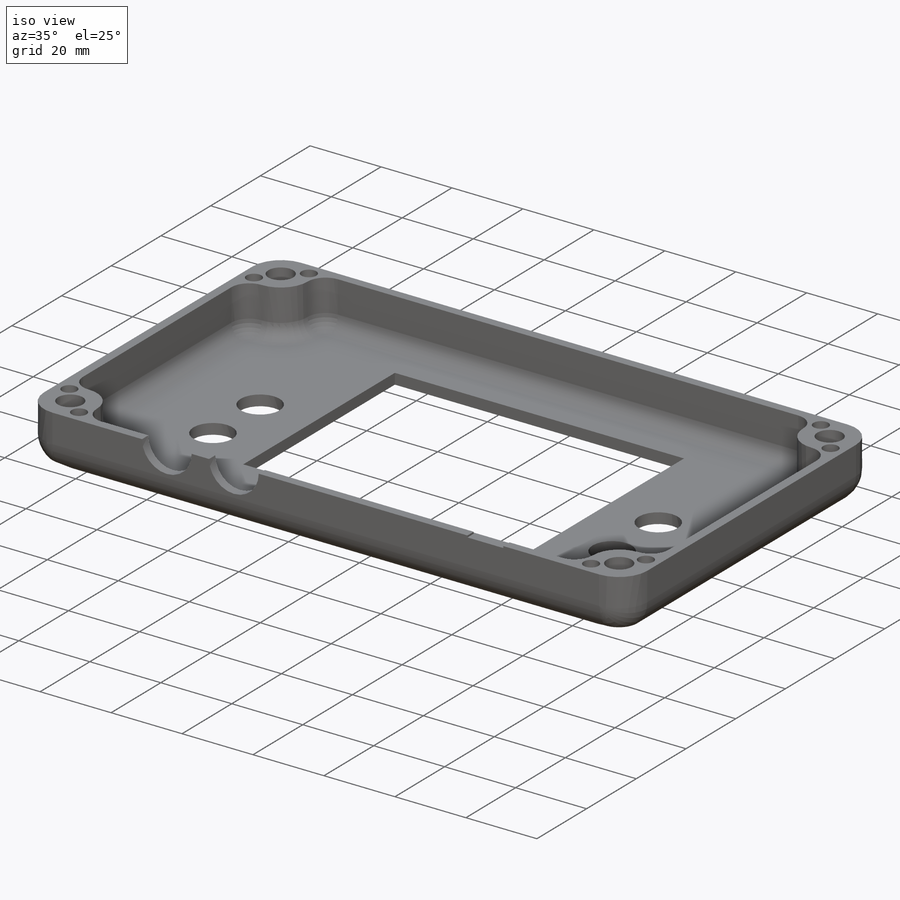
[diagram: iso view]
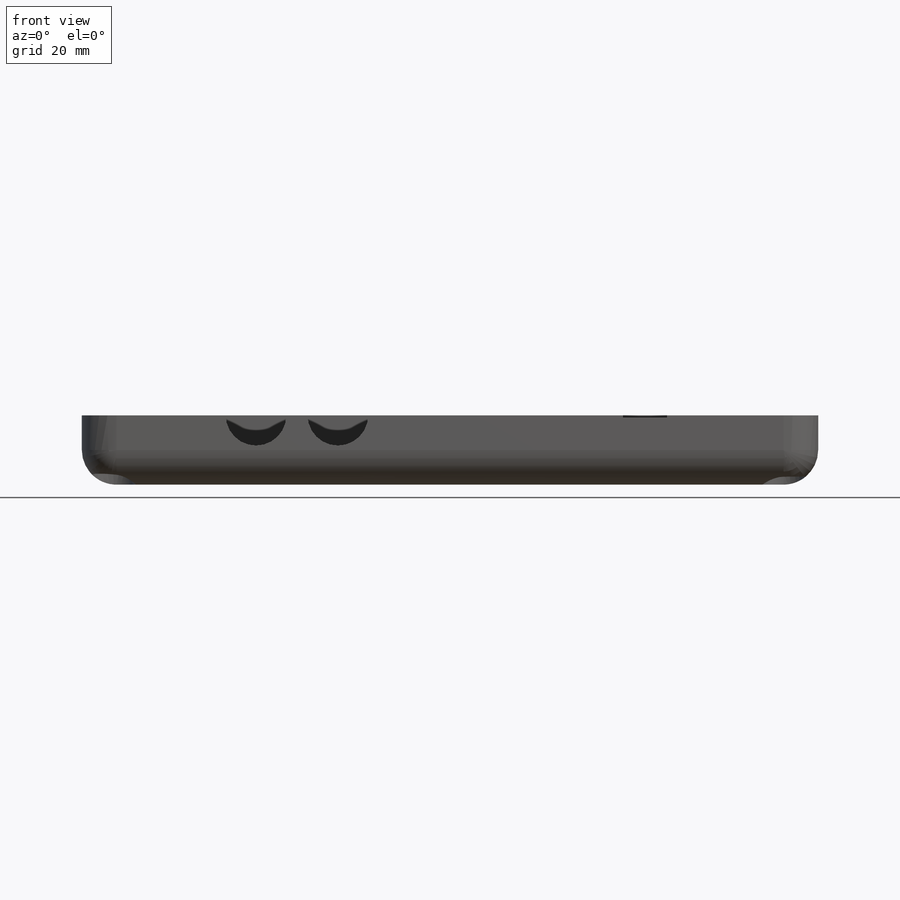
[diagram: front view]
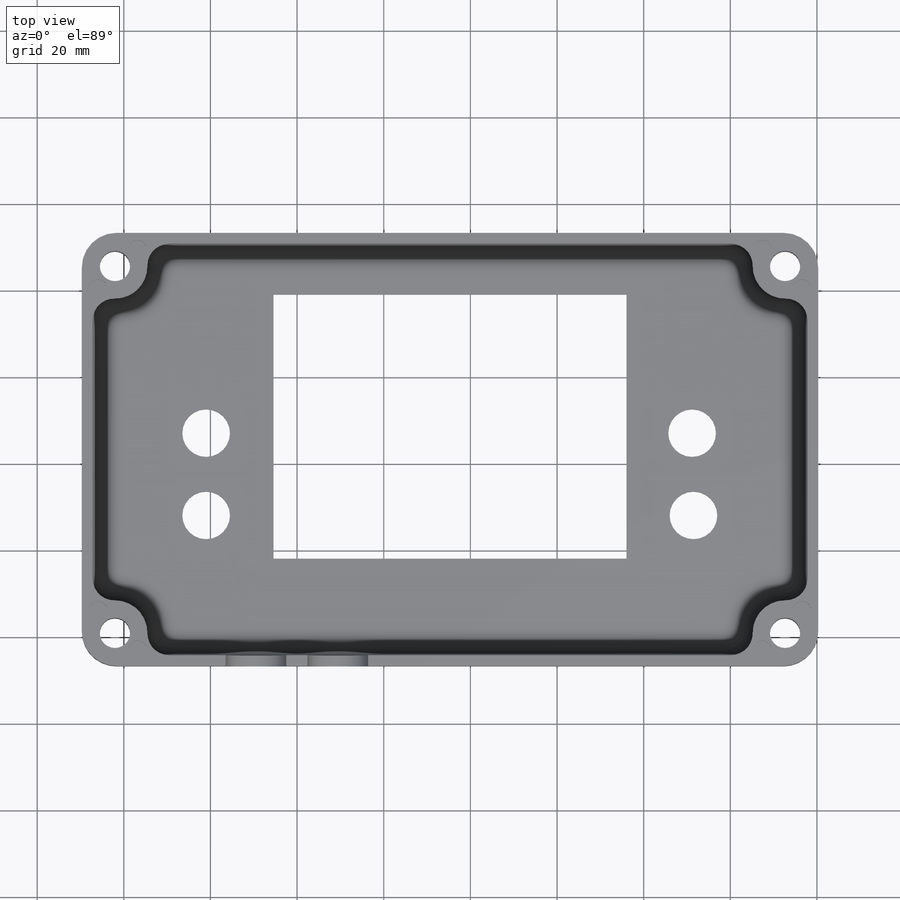
[diagram: top view]
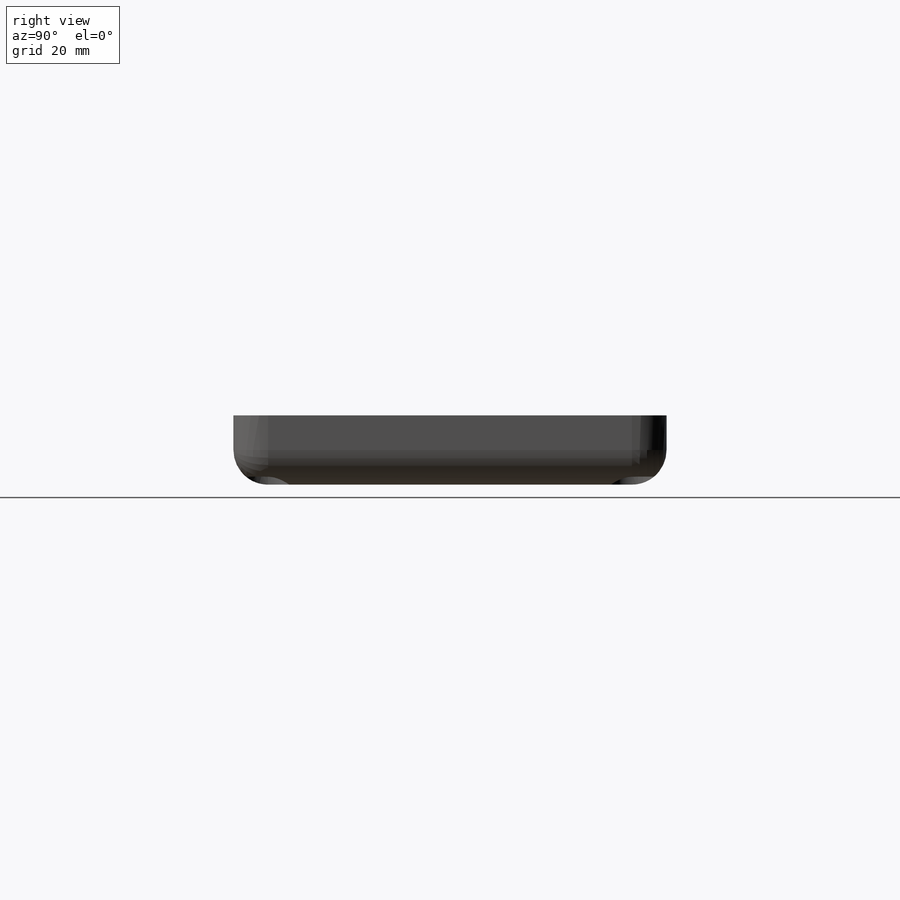
[diagram: right view]
SOLIDWORKS PART (.sldprt)
format: sldprt  version: not decoded by parser v0  size: 1,468,928 bytes
history: native  units: mm
features: sketch x22, cut_extrude x16, extrude x4, fillet x4, material x1 + 1 further entry (+15 scaffold rows collapsed)
feature tree (63):
  scaffold x15  (default folders/planes/origin — collapsed)
  material  "Material <not specified>"
  "Annotations"  RD1=170mm RD2=95mm
  sketch  "Sketch4"  dims[D1=170.0mm]
  extrude  "Boss-Extrude2"  Depth=41mm
  fillet  "Fillet2"  Radius=8.001mm
  fillet  "Fillet3"  Radius=8.001mm
  fillet  "Fillet4"  Radius=8.001mm
  sketch  "Sketch15"  dims[c1.D1=5.0mm c1.D2=5.0mm c1.D3=5.0mm c1.D4=5.0mm c1.D5=5.0mm c1.D6=5.0mm c1.D7=5.0mm c1.D8=5.0mm c1.D13=~2.533664mm c1.D17=7.5mm c1.D18=7.5mm c1.D19=7.5mm c1.D20=7.5mm c1.D30=3.75mm c2.D1=~2.343439mm c2.D9=2.5mm c2.D10=2.5mm c2.D11=2.5mm c2.D12=2.5mm c2.D13=77.0mm c2.D14=66.0mm c2.D16=~41.795106mm c3.D13=32.5mm c3.D14=51.5mm c3.D15=9.0mm c3.D16=8.5mm c3.D17=7.5mm c3.D18=~5.958083mm c3.D19=7.5mm c3.D20=7.5mm c4.D18=7.5mm c4.D21=5.303mm c4.D22=5.303mm c4.D23=5.303mm c4.D24=5.303mm c4.D25=7.5mm c4.D26=7.5mm c4.D27=7.5mm c4.D28=7.5mm c4.D29=112.5mm c4.D15=2.5mm]
  cut_extrude  "Cut-Extrude2"  Depth=38.007516mm
  cut_extrude  "Cut-Extrude3"  [1 undecoded]
  sketch  "Sketch15<11>"  dims[D1=41.0mm]
  cut_extrude  "Cut-Extrude4"  [1 undecoded]
  sketch  "Sketch15<12>"  dims[D1=41.0mm]
  cut_extrude  "Cut-Extrude5"  [1 undecoded]
  sketch  "Sketch15<14>"  dims[D1=41.0mm]
  cut_extrude  "Cut-Extrude11"  [1 undecoded]
  sketch  "Sketch15<22>"  dims[D1=41.0mm]
  sketch  "Sketch19"  dims[D1=72.0mm D2=95.0mm D3=37.5mm D4=19.5mm D5=8.5mm D6=61.0mm D7=81.5mm D8=6.75mm D9=5.5mm]
  sketch  "Sketch20"
  cut_extrude  "Cut-Extrude12"  Depth=41mm
  cut_extrude  "Cut-Extrude13"  [1 undecoded]
  sketch  "Sketch15<24>"  dims[D1=41.0mm]
  cut_extrude  "Cut-Extrude14"  [1 undecoded]
  sketch  "Sketch15<28>"  dims[D1=41.0mm]
  cut_extrude  "Cut-Extrude15"  [1 undecoded]
  sketch  "Sketch15<31>"  dims[D1=41.0mm]
  cut_extrude  "Cut-Extrude16"  [1 undecoded]
  sketch  "Sketch15<32>"  dims[D1=41.0mm]
  sketch  "Sketch21"
  extrude  "Boss-Extrude5"  [1 undecoded]
  sketch  "Sketch19<4>"  dims[D1=0.01mm]
  sketch  "Sketch25"  dims[D1=~6.106033mm]
  extrude  "Boss-Extrude6"  Depth=8.35744mm
  fillet  "Fillet5"  Radius=4mm
  sketch  "Sketch26"
  extrude  "Boss-Extrude7"  Depth=7.178655mm
  sketch  "Sketch27"  dims[D1=0.0mm]
  cut_extrude  "Cut-Extrude17"  Depth=25mm
  sketch  "Sketch28"  dims[D1=3.75mm D2=3.75mm]
  cut_extrude  "Cut-Extrude18"  Depth=2.5mm
  sketch  "Sketch29"  dims[c1.D1=~4.668416mm c1.D3=~5.336864mm c1.D5=~5.38126mm c2.D1=3.75mm c2.D2=3.75mm c2.D3=3.75mm c2.D4=3.75mm c2.D5=3.75mm c2.D6=3.75mm]
  cut_extrude  "Cut-Extrude19"  Depth=2.5mm
  sketch  "Sketch30"
  cut_extrude  "Cut-Extrude20"  Depth=1mm
  sketch  "Sketch31"
  cut_extrude  "Cut-Extrude21"  Depth=1mm
  sketch  "Sketch32"  dims[c1.D1=~5.984265mm c1.D7=7.0mm c1.D9=7.0mm c1.D11=7.0mm c1.D13=7.0mm c1.D17=2.0mm c2.D1=6.5mm c2.D2=3.75mm c2.D3=6.5mm c2.D4=3.75mm c2.D5=6.5mm c2.D6=3.75mm c2.D7=6.5mm c2.D8=3.75mm c2.D9=6.5mm c2.D10=3.75mm c2.D11=6.5mm c2.D12=3.75mm c2.D13=6.5mm c2.D14=3.75mm c2.D15=6.5mm c2.D16=3.75mm]
  cut_extrude  "Cut-Extrude22"  Depth=2.1mm
decode coverage: 32 of 46 modeling features carry decoded parameters; 1 rows unclassified (native names shown)
note: ~ marks probable driven/reference dimensions
note: 9 parameter values undecoded
summary: no parameter record found for 9 features
note: suppression state not decoded; provenance and decode notes live in map.json
